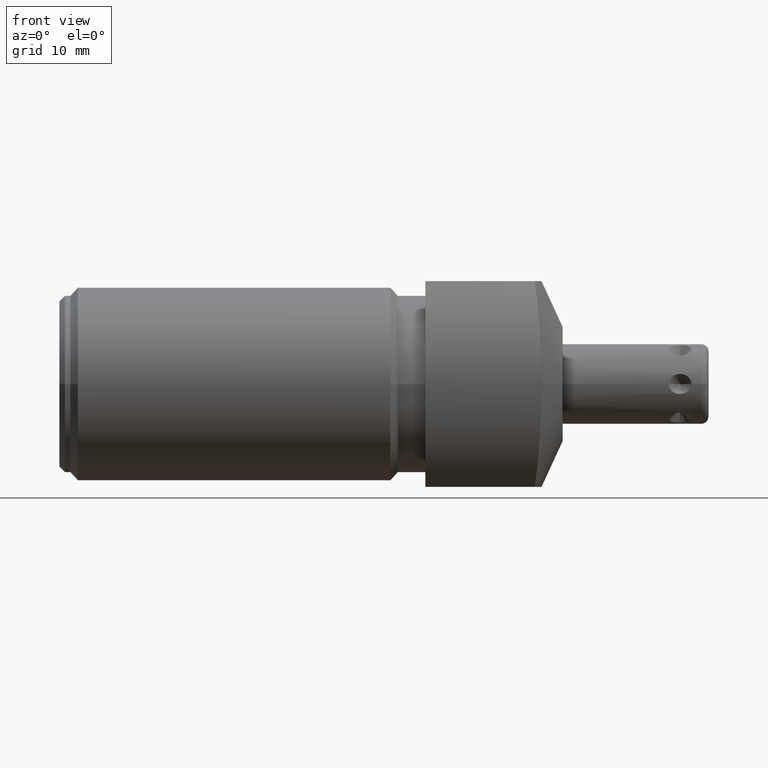
[diagram: clean part render]
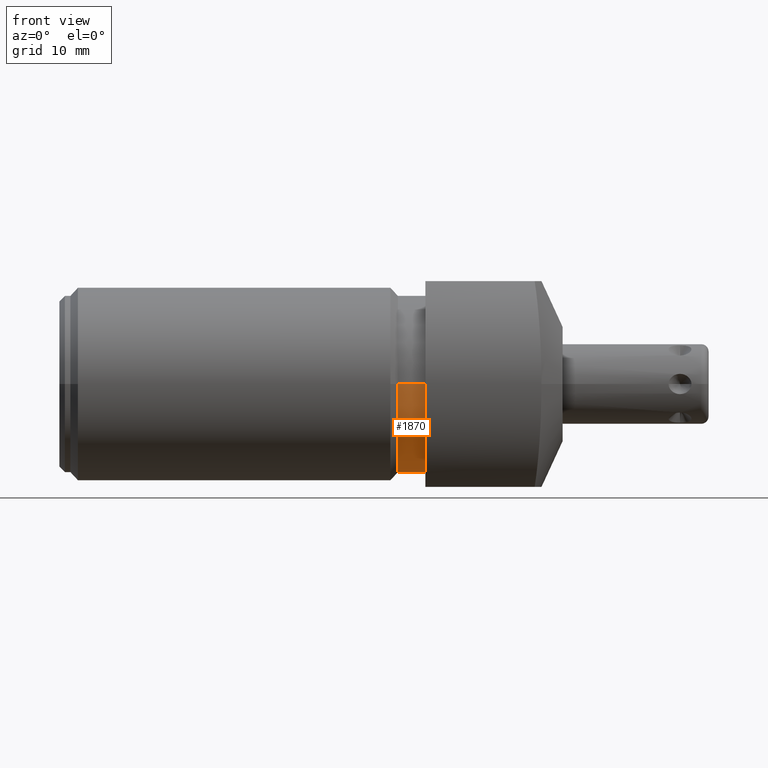
[diagram: same view with one face highlighted and labeled with its STEP entity id]
A machine part, front view. The second image highlights one B-rep face of the part: STEP entity #1870.
In plain terms, the highlighted cylindrical surface (partial cylindrical patch) has radius 12.319 mm, axis along (-1, 0, 0).
Its self-contained STEP definition (entity closure, byte-faithful):
#259=CARTESIAN_POINT('',(0.E0,-1.87E-1,0.E0));
#260=DIRECTION('',(-1.E0,0.E0,0.E0));
#261=DIRECTION('',(0.E0,1.E0,0.E0));
#262=AXIS2_PLACEMENT_3D('',#259,#260,#261);
#367=CARTESIAN_POINT('',(-1.5E-1,-1.87E-1,0.E0));
#368=DIRECTION('',(-1.E0,0.E0,0.E0));
#369=DIRECTION('',(0.E0,1.E0,0.E0));
#370=AXIS2_PLACEMENT_3D('',#367,#368,#369);
#375=DIRECTION('',(1.E0,0.E0,0.E0));
#376=VECTOR('',#375,1.5E-1);
#377=CARTESIAN_POINT('',(-1.5E-1,2.98E-1,0.E0));
#378=LINE('',#377,#376);
#382=DIRECTION('',(1.E0,0.E0,0.E0));
#383=VECTOR('',#382,1.5E-1);
#384=CARTESIAN_POINT('',(-1.5E-1,-6.72E-1,0.E0));
#385=LINE('',#384,#383);
#1514=CARTESIAN_POINT('',(-1.5E-1,2.98E-1,0.E0));
#1515=CARTESIAN_POINT('',(0.E0,2.98E-1,0.E0));
#1516=VERTEX_POINT('',#1514);
#1517=VERTEX_POINT('',#1515);
#1518=CARTESIAN_POINT('',(-1.5E-1,-6.72E-1,0.E0));
#1519=CARTESIAN_POINT('',(0.E0,-6.72E-1,0.E0));
#1520=VERTEX_POINT('',#1518);
#1521=VERTEX_POINT('',#1519);
#1856=CARTESIAN_POINT('',(9.55E-3,-1.87E-1,0.E0));
#1857=DIRECTION('',(-1.E0,0.E0,0.E0));
#1858=DIRECTION('',(0.E0,1.E0,0.E0));
#1859=AXIS2_PLACEMENT_3D('',#1856,#1857,#1858);
#1860=CYLINDRICAL_SURFACE('',#1859,4.85E-1);
#1862=ORIENTED_EDGE('',*,*,#1861,.F.);
#1864=ORIENTED_EDGE('',*,*,#1863,.T.);
#1866=ORIENTED_EDGE('',*,*,#1865,.T.);
#1867=ORIENTED_EDGE('',*,*,#1849,.F.);
#1868=EDGE_LOOP('',(#1862,#1864,#1866,#1867));
#1869=FACE_OUTER_BOUND('',#1868,.F.);
#1870=ADVANCED_FACE('',(#1869),#1860,.T.);
#263=CIRCLE('',#262,4.85E-1);
#371=CIRCLE('',#370,4.85E-1);
#1849=EDGE_CURVE('',#1517,#1521,#263,.T.);
#1861=EDGE_CURVE('',#1516,#1517,#378,.T.);
#1863=EDGE_CURVE('',#1516,#1520,#371,.T.);
#1865=EDGE_CURVE('',#1520,#1521,#385,.T.);